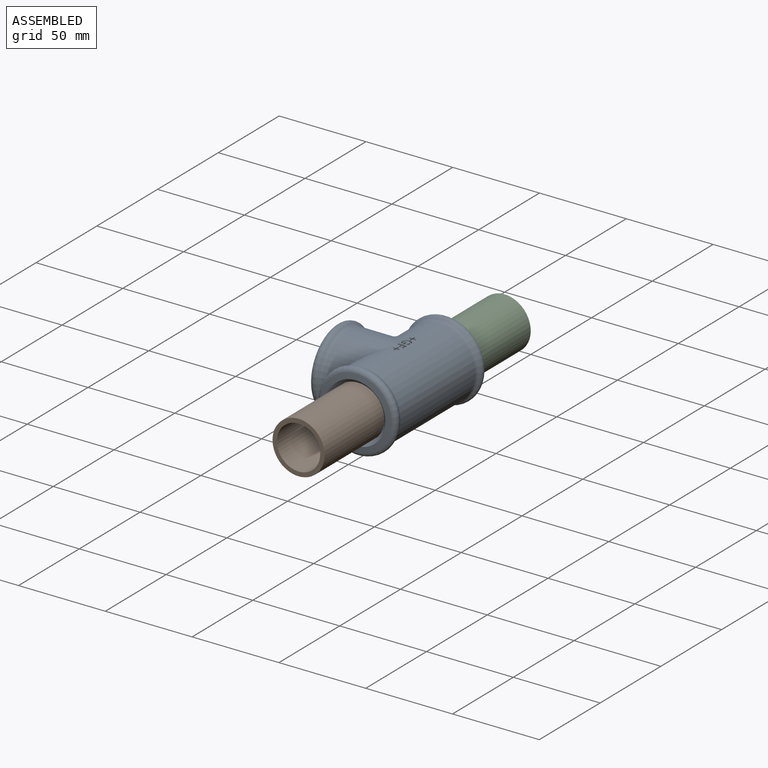
[diagram: assembled view]
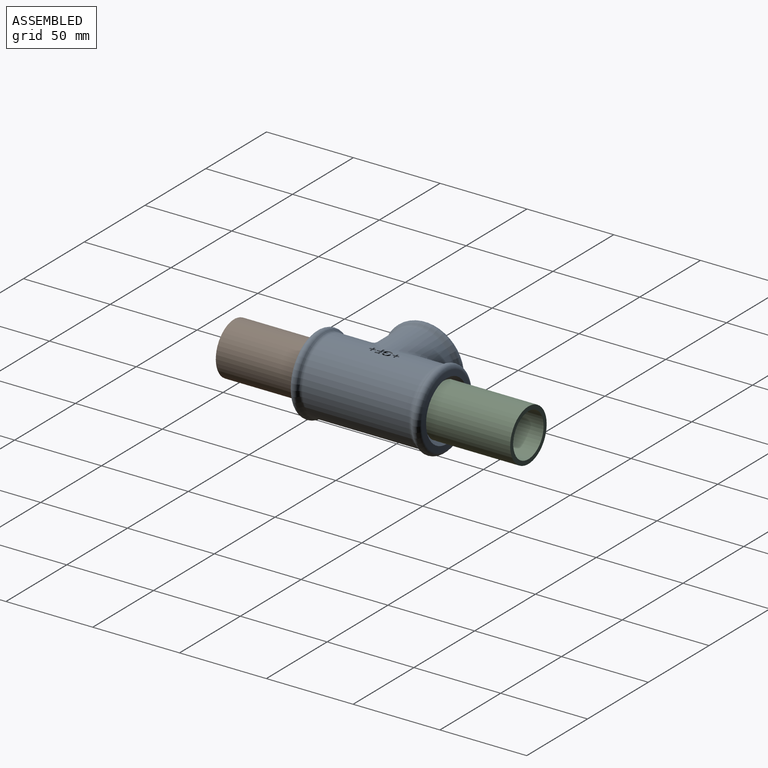
[diagram: assembled view, second angle]
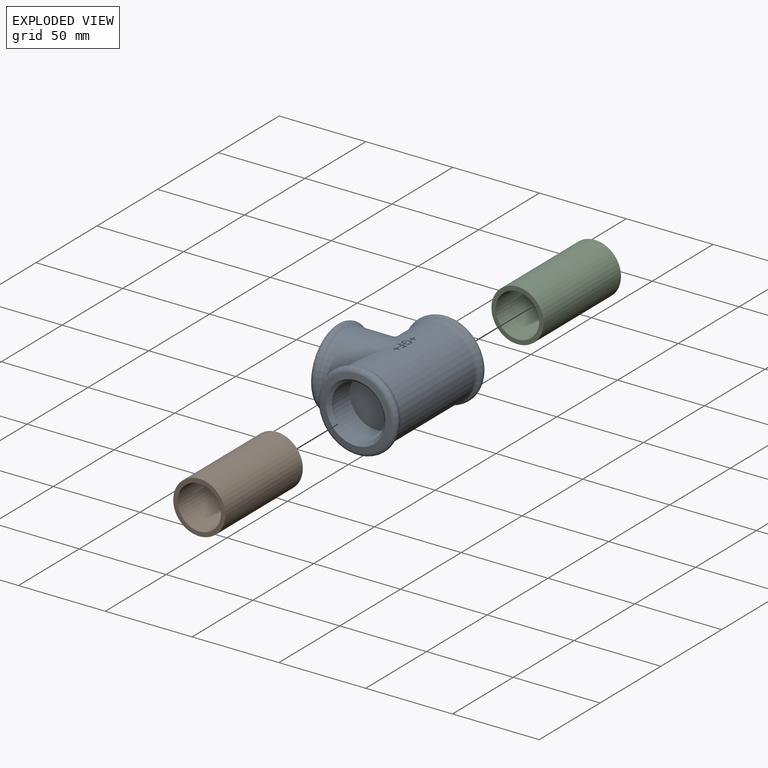
[diagram: exploded view]
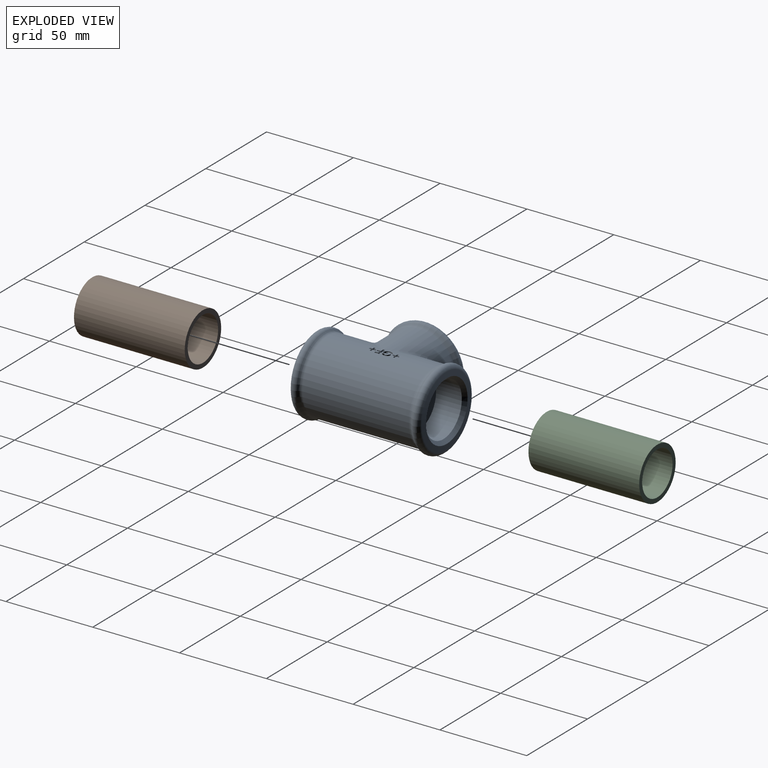
[diagram: exploded view, second angle]
ASSEMBLY  parts=3 mates=2
PART A: 66 faces, bbox 63.7x51.9x75.6 mm
  f0: torus R=20.05mm, axis (0,0,1), area 861.6mm2, adj f3,f4
  f1: torus R=20.05mm, axis (0,0,1), area 861.6mm2, adj f5,f6
  f2: torus R=20.05mm, axis (-1,0,0), area 861.6mm2, adj f7,f8
  f3: torus R=23.95mm, axis (0,0,1), area 327.7mm2, adj f0,f16
  f4: cone r=17.47mm half-angle=85deg, axis (0,0,1), area 375.5mm2, adj f0,f13
  f5: cone r=17.47mm half-angle=85deg, axis (0,0,-1), area 375.5mm2, adj f1,f15
  f6: torus R=23.95mm, axis (0,0,1), area 327.7mm2, adj f1,f16
  f7: torus R=23.95mm, axis (-1,0,0), area 327.7mm2, adj f2,f9
  f8: cone r=17.47mm half-angle=85deg, axis (-1,0,0), area 375.5mm2, adj f2,f11
  f9: cylinder r=20.95mm len=41.9mm, axis (1,0,0), area 1943mm2, adj f7,f43,f44,f45,f64,f65
  f10: cylinder r=15.15mm len=30.29mm, axis (1,0,0), area 1411.4mm2, adj f11,f63
  f11: cone r=16.23mm half-angle=45deg, axis (1,0,0), area 280mm2, adj f8,f10
  f12: cylinder r=15.15mm len=30.29mm, axis (0,0,-1), area 1411.4mm2, adj f13,f62
  f13: cone r=16.23mm half-angle=45deg, axis (0,0,-1), area 280mm2, adj f4,f12
  f14: cylinder r=15.15mm len=30.29mm, axis (0,0,1), area 1411.4mm2, adj f15,f61
  f15: cone r=16.23mm half-angle=45deg, axis (0,0,1), area 280mm2, adj f5,f14
  f16: cylinder r=20.95mm len=61.32mm, axis (0,0,-1), area 5950mm2, adj f3,f6,f17,f18,f19,f20,f21,f22
  f17: cylinder r=2.55mm len=5.1mm, axis (0,1,0), area 13.9mm2, adj f16,f34,f35,f36,f65
  f18: cylinder r=1.55mm len=3.09mm, axis (0,1,0), area 8.2mm2, adj f16,f32,f35,f36
  f19: plane 1.36x1mm, normal (0,0,1), area 1.3mm2, adj f16,f20,f30,f31
  f20: plane 1.36x1mm, normal (-1,0,0), area 1.4mm2, adj f16,f19,f21,f31
  f21: plane 1x0.88mm, normal (0,0,1), area 0.9mm2, adj f16,f20,f22,f31
  f22: plane 1.36x0.99mm, normal (1,0,0), area 1.3mm2, adj f16,f21,f23,f31
  f23: plane 1.36x0.99mm, normal (0,0,1), area 1.3mm2, adj f16,f22,f24,f31
  f24: plane 0.91x0.88mm, normal (1,0,0), area 0.8mm2, adj f16,f23,f25,f31
  f25: plane 1.36x0.99mm, normal (0,0,-1), area 1.3mm2, adj f16,f24,f26,f31
  f26: plane 1.36x0.99mm, normal (1,0,0), area 1.3mm2, adj f16,f25,f27,f31
  f27: plane 1x0.88mm, normal (0,0,-1), area 0.9mm2, adj f16,f26,f28,f31
  f28: plane 1.36x1mm, normal (-1,0,0), area 1.4mm2, adj f16,f27,f29,f31
  f29: plane 1.36x1mm, normal (0,0,-1), area 1.3mm2, adj f16,f28,f30,f31
  f30: plane 0.93x0.88mm, normal (-1,0,0), area 0.8mm2, adj f16,f19,f29,f31
  f31: plane 3.6x3.6mm, normal (0,-1,0), area 5.6mm2, adj f19,f20,f21,f22,f23,f24,f25,f26
  f32: plane 1.39x0.99mm, normal (-1,0,0), area 1.4mm2, adj f16,f18,f33,f36
  f33: plane 1x0.94mm, normal (0,0,1), area 0.9mm2, adj f16,f32,f34,f36
  f34: plane 2.54x1mm, normal (1,0,0), area 2.5mm2, adj f16,f17,f33,f36
  f35: plane 0.98x0.87mm, normal (-0.87,0,-0.5), area 1mm2, adj f16,f17,f18,f36
  f36: plane 5.1x5.1mm, normal (0,-1,0), area 13.5mm2, adj f17,f18,f32,f33,f34,f35
  f37: plane 0.94x0.94mm, normal (0,0,-1), area 0.8mm2, adj f16,f38,f46,f47
  f38: plane 1.79x0.94mm, normal (-1,0,0), area 1.7mm2, adj f16,f37,f39,f47
  f39: plane 0.99x0.97mm, normal (0,0,-1), area 0.9mm2, adj f16,f38,f40,f47
  f40: plane 1.79x0.99mm, normal (1,0,0), area 1.8mm2, adj f16,f39,f41,f47
  f41: plane 1x0.94mm, normal (0,0,-1), area 0.9mm2, adj f16,f40,f42,f47
  f42: plane 1.79x1mm, normal (-1,0,0), area 1.8mm2, adj f16,f41,f43,f47
  f43: plane 2.05x1.01mm, normal (0,0,-1), area 2mm2, adj f9,f16,f42,f44,f47,f64
  f44: plane 1.11x1mm, normal (-1,0,0), area 1.1mm2, adj f9,f43,f45,f47
  f45: plane 4.89x1.02mm, normal (0,0,1), area 4.7mm2, adj f9,f16,f44,f46,f47,f65
  f46: plane 2.89x0.85mm, normal (1,0,0), area 2.4mm2, adj f16,f37,f45,f47
  f47: plane 4.88x2.89mm, normal (0,-1,0), area 8.7mm2, adj f37,f38,f39,f40,f41,f42,f43,f44
  f48: plane 1x0.88mm, normal (0,0,1), area 0.9mm2, adj f16,f49,f59,f60
  f49: plane 1.36x0.99mm, normal (1,0,0), area 1.3mm2, adj f16,f48,f50,f60
  f50: plane 1.36x0.99mm, normal (0,0,1), area 1.3mm2, adj f16,f49,f51,f60
  f51: plane 0.91x0.88mm, normal (1,0,0), area 0.8mm2, adj f16,f50,f52,f60
  f52: plane 1.36x0.99mm, normal (0,0,-1), area 1.3mm2, adj f16,f51,f53,f60
  f53: plane 1.36x0.99mm, normal (1,0,0), area 1.3mm2, adj f16,f52,f54,f60
  f54: plane 1x0.88mm, normal (0,0,-1), area 0.9mm2, adj f16,f53,f55,f60
  f55: plane 1.36x1mm, normal (-1,0,0), area 1.4mm2, adj f16,f54,f56,f60
  f56: plane 1.36x1mm, normal (0,0,-1), area 1.3mm2, adj f16,f55,f57,f60
  f57: plane 0.93x0.88mm, normal (-1,0,0), area 0.8mm2, adj f16,f56,f58,f60
  f58: plane 1.36x1mm, normal (0,0,1), area 1.3mm2, adj f16,f57,f59,f60
  f59: plane 1.36x1mm, normal (-1,0,0), area 1.4mm2, adj f16,f48,f58,f60
  f60: plane 3.6x3.6mm, normal (0,-1,0), area 5.6mm2, adj f48,f49,f50,f51,f52,f53,f54,f55
  f61: plane 30.29x30.29mm, normal (0,0,1), area 720.6mm2, adj f14
  f62: plane 30.29x30.29mm, normal (0,0,-1), area 720.6mm2, adj f12
  f63: plane 30.29x30.29mm, normal (1,0,0), area 720.6mm2, adj f10
  f64: bspline ~41.9x24.96mm, area 294.9mm2, adj f9,f16,f43
  f65: bspline ~41.89x24.97mm, area 294.9mm2, adj f9,f16,f17,f45
PART B: 4 faces, bbox 30x30x63.8 mm
  f0: cylinder r=12.5mm len=63.8mm, axis (0,0,-1), area 5010.8mm2, adj f2,f3
  f1: cylinder r=15mm len=63.8mm, axis (0,0,-1), area 6013mm2, adj f2,f3
  f2: plane 30x30mm, normal (0,0,1), area 216mm2, adj f0,f1
  f3: plane 30x30mm, normal (0,0,-1), area 216mm2, adj f0,f1
PART C: same geometry as B
PLACE A rot(axis=(0,-0.71,0.71),179.8deg) t=(1.23,42.02,640.09)mm
PLACE B rot(axis=(1,0,0),90deg) t=(1.23,21.02,640.09)mm
PLACE C rot(axis=(1,0,0),90deg) t=(1.23,126.82,640.09)mm
MATE fastened B.f0 <-> A.f0  axis (0,1,0) through (1.23,21.02,640.09)mm
MATE fastened C.f0 <-> A.f0  axis (0,1,0) through (1.23,63.02,640.09)mm
